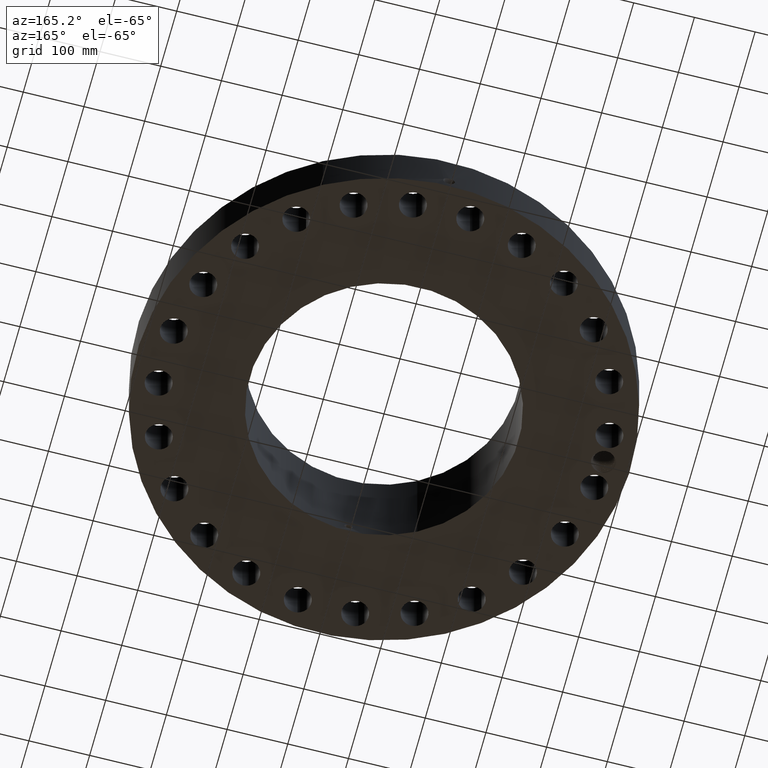
[diagram: clean part render]
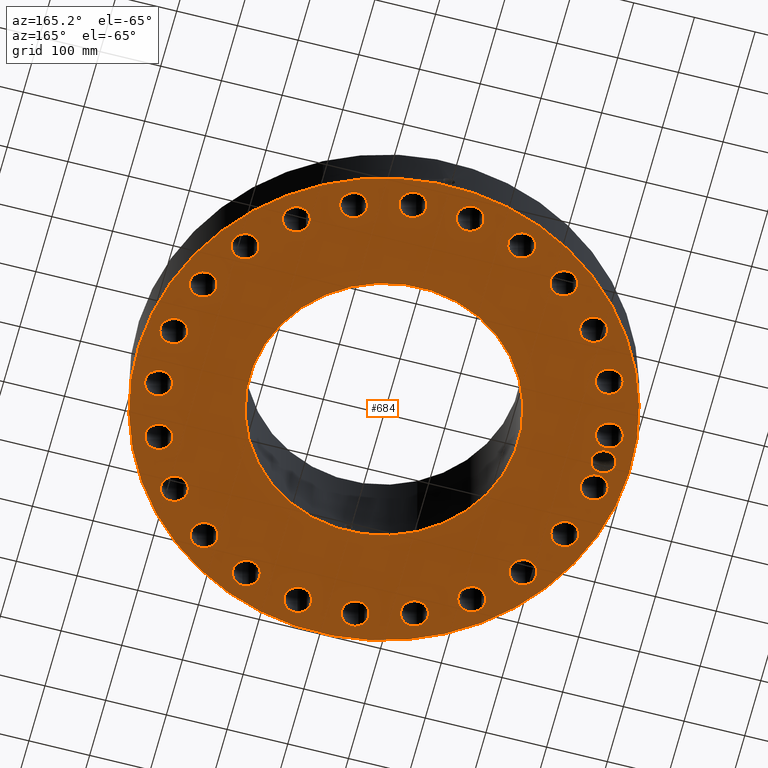
[diagram: same view with one face highlighted and labeled with its STEP entity id]
A machine part, auxiliary view. The second image highlights one B-rep face of the part: STEP entity #684.
In plain terms, the highlighted planar face has unit normal (0, 0, -1).
Its self-contained STEP definition (entity closure, byte-faithful):
#42=AXIS2_PLACEMENT_3D('Circle Axis2P3D',#40,#41,$) ;
#165=AXIS2_PLACEMENT_3D('Plane Axis2P3D',#162,#163,#164) ;
#169=AXIS2_PLACEMENT_3D('Circle Axis2P3D',#167,#168,$) ;
#178=AXIS2_PLACEMENT_3D('Circle Axis2P3D',#176,#177,$) ;
#187=AXIS2_PLACEMENT_3D('Circle Axis2P3D',#185,#186,$) ;
#236=AXIS2_PLACEMENT_3D('Circle Axis2P3D',#234,#235,$) ;
#245=AXIS2_PLACEMENT_3D('Circle Axis2P3D',#243,#244,$) ;
#254=AXIS2_PLACEMENT_3D('Circle Axis2P3D',#252,#253,$) ;
#263=AXIS2_PLACEMENT_3D('Circle Axis2P3D',#261,#262,$) ;
#272=AXIS2_PLACEMENT_3D('Circle Axis2P3D',#270,#271,$) ;
#281=AXIS2_PLACEMENT_3D('Circle Axis2P3D',#279,#280,$) ;
#290=AXIS2_PLACEMENT_3D('Circle Axis2P3D',#288,#289,$) ;
#299=AXIS2_PLACEMENT_3D('Circle Axis2P3D',#297,#298,$) ;
#308=AXIS2_PLACEMENT_3D('Circle Axis2P3D',#306,#307,$) ;
#317=AXIS2_PLACEMENT_3D('Circle Axis2P3D',#315,#316,$) ;
#326=AXIS2_PLACEMENT_3D('Circle Axis2P3D',#324,#325,$) ;
#335=AXIS2_PLACEMENT_3D('Circle Axis2P3D',#333,#334,$) ;
#344=AXIS2_PLACEMENT_3D('Circle Axis2P3D',#342,#343,$) ;
#353=AXIS2_PLACEMENT_3D('Circle Axis2P3D',#351,#352,$) ;
#362=AXIS2_PLACEMENT_3D('Circle Axis2P3D',#360,#361,$) ;
#371=AXIS2_PLACEMENT_3D('Circle Axis2P3D',#369,#370,$) ;
#380=AXIS2_PLACEMENT_3D('Circle Axis2P3D',#378,#379,$) ;
#389=AXIS2_PLACEMENT_3D('Circle Axis2P3D',#387,#388,$) ;
#398=AXIS2_PLACEMENT_3D('Circle Axis2P3D',#396,#397,$) ;
#407=AXIS2_PLACEMENT_3D('Circle Axis2P3D',#405,#406,$) ;
#416=AXIS2_PLACEMENT_3D('Circle Axis2P3D',#414,#415,$) ;
#425=AXIS2_PLACEMENT_3D('Circle Axis2P3D',#423,#424,$) ;
#434=AXIS2_PLACEMENT_3D('Circle Axis2P3D',#432,#433,$) ;
#443=AXIS2_PLACEMENT_3D('Circle Axis2P3D',#441,#442,$) ;
#452=AXIS2_PLACEMENT_3D('Circle Axis2P3D',#450,#451,$) ;
#461=AXIS2_PLACEMENT_3D('Circle Axis2P3D',#459,#460,$) ;
#470=AXIS2_PLACEMENT_3D('Circle Axis2P3D',#468,#469,$) ;
#479=AXIS2_PLACEMENT_3D('Circle Axis2P3D',#477,#478,$) ;
#488=AXIS2_PLACEMENT_3D('Circle Axis2P3D',#486,#487,$) ;
#497=AXIS2_PLACEMENT_3D('Circle Axis2P3D',#495,#496,$) ;
#506=AXIS2_PLACEMENT_3D('Circle Axis2P3D',#504,#505,$) ;
#515=AXIS2_PLACEMENT_3D('Circle Axis2P3D',#513,#514,$) ;
#524=AXIS2_PLACEMENT_3D('Circle Axis2P3D',#522,#523,$) ;
#533=AXIS2_PLACEMENT_3D('Circle Axis2P3D',#531,#532,$) ;
#542=AXIS2_PLACEMENT_3D('Circle Axis2P3D',#540,#541,$) ;
#551=AXIS2_PLACEMENT_3D('Circle Axis2P3D',#549,#550,$) ;
#560=AXIS2_PLACEMENT_3D('Circle Axis2P3D',#558,#559,$) ;
#569=AXIS2_PLACEMENT_3D('Circle Axis2P3D',#567,#568,$) ;
#578=AXIS2_PLACEMENT_3D('Circle Axis2P3D',#576,#577,$) ;
#587=AXIS2_PLACEMENT_3D('Circle Axis2P3D',#585,#586,$) ;
#596=AXIS2_PLACEMENT_3D('Circle Axis2P3D',#594,#595,$) ;
#605=AXIS2_PLACEMENT_3D('Circle Axis2P3D',#603,#604,$) ;
#614=AXIS2_PLACEMENT_3D('Circle Axis2P3D',#612,#613,$) ;
#623=AXIS2_PLACEMENT_3D('Circle Axis2P3D',#621,#622,$) ;
#632=AXIS2_PLACEMENT_3D('Circle Axis2P3D',#630,#631,$) ;
#641=AXIS2_PLACEMENT_3D('Circle Axis2P3D',#639,#640,$) ;
#650=AXIS2_PLACEMENT_3D('Circle Axis2P3D',#648,#649,$) ;
#659=AXIS2_PLACEMENT_3D('Circle Axis2P3D',#657,#658,$) ;
#668=AXIS2_PLACEMENT_3D('Circle Axis2P3D',#666,#667,$) ;
#677=AXIS2_PLACEMENT_3D('Circle Axis2P3D',#675,#676,$) ;
#40=CARTESIAN_POINT('Axis2P3D Location',(0.,0.,0.250000000001)) ;
#44=CARTESIAN_POINT('Vertex',(-7.6708086177,-14.0413209903,0.250000000001)) ;
#46=CARTESIAN_POINT('Vertex',(7.6708086177,14.0413209903,0.250000000001)) ;
#162=CARTESIAN_POINT('Axis2P3D Location',(0.,8.71900000003,0.250000000001)) ;
#167=CARTESIAN_POINT('Axis2P3D Location',(0.,0.,0.250000000001)) ;
#176=CARTESIAN_POINT('Axis2P3D Location',(-14.2500000001,-1.1189649382E-015,0.250000000001)) ;
#180=CARTESIAN_POINT('Vertex',(-14.920692473,0.36640096788,0.250000000001)) ;
#182=CARTESIAN_POINT('Vertex',(-14.109430485,0.75121120462,0.250000000001)) ;
#185=CARTESIAN_POINT('Axis2P3D Location',(-14.2500000001,-1.1189649382E-015,0.250000000001)) ;
#189=CARTESIAN_POINT('Vertex',(-14.109753553,-0.751271586437,0.250000000001)) ;
#193=CARTESIAN_POINT('Control Point',(-13.4375000001,1.00706844438E-014,0.250000000001)) ;
#194=CARTESIAN_POINT('Control Point',(-13.4405034549,-0.0700819441943,0.250000000001)) ;
#195=CARTESIAN_POINT('Control Point',(-13.4510704091,-0.13968877275,0.250000000001)) ;
#196=CARTESIAN_POINT('Control Point',(-13.4691263165,-0.207700003897,0.250000000001)) ;
#197=CARTESIAN_POINT('Control Point',(-13.519604773,-0.338419063919,0.250000000001)) ;
#198=CARTESIAN_POINT('Control Point',(-13.5966628654,-0.454573110216,0.250000000001)) ;
#199=CARTESIAN_POINT('Control Point',(-13.6413276705,-0.508069748149,0.250000000001)) ;
#200=CARTESIAN_POINT('Control Point',(-13.7414180791,-0.604187089628,0.250000000001)) ;
#201=CARTESIAN_POINT('Control Point',(-13.8594366449,-0.675897162851,0.250000000001)) ;
#202=CARTESIAN_POINT('Control Point',(-13.9220591025,-0.705005536257,0.250000000001)) ;
#203=CARTESIAN_POINT('Control Point',(-13.9980973711,-0.730534701364,0.250000000001)) ;
#204=CARTESIAN_POINT('Control Point',(-14.0761243016,-0.745926387661,0.250000000001)) ;
#205=CARTESIAN_POINT('Control Point',(-14.0873053839,-0.747917086949,0.250000000001)) ;
#206=CARTESIAN_POINT('Control Point',(-14.0985168536,-0.749699040823,0.250000000001)) ;
#207=CARTESIAN_POINT('Control Point',(-14.109753553,-0.751271586437,0.250000000001)) ;
#208=CARTESIAN_POINT('Vertex',(-13.4375000001,7.83275456743E-015,0.250000000001)) ;
#212=CARTESIAN_POINT('Control Point',(-13.4375000001,7.83275456743E-015,0.250000000001)) ;
#213=CARTESIAN_POINT('Control Point',(-13.4405027035,0.0700644117476,0.250000000001)) ;
#214=CARTESIAN_POINT('Control Point',(-13.4510651194,0.139653925414,0.250000000001)) ;
#215=CARTESIAN_POINT('Control Point',(-13.4691221804,0.207669613936,0.250000000001)) ;
#216=CARTESIAN_POINT('Control Point',(-13.5195963185,0.338375224405,0.250000000001)) ;
#217=CARTESIAN_POINT('Control Point',(-13.5966935604,0.454596467697,0.250000000001)) ;
#218=CARTESIAN_POINT('Control Point',(-13.6413727782,0.508119482105,0.250000000001)) ;
#219=CARTESIAN_POINT('Control Point',(-13.724805891,0.588234238338,0.250000000001)) ;
#220=CARTESIAN_POINT('Control Point',(-13.8207316301,0.651398124702,0.250000000001)) ;
#221=CARTESIAN_POINT('Control Point',(-13.8608246277,0.673749716828,0.250000000001)) ;
#222=CARTESIAN_POINT('Control Point',(-13.9334161483,0.707459382397,0.250000000001)) ;
#223=CARTESIAN_POINT('Control Point',(-14.0094370985,0.731460622269,0.250000000001)) ;
#224=CARTESIAN_POINT('Control Point',(-14.0424615587,0.739905634554,0.250000000001)) ;
#225=CARTESIAN_POINT('Control Point',(-14.0758392084,0.746494332784,0.250000000001)) ;
#226=CARTESIAN_POINT('Control Point',(-14.109430485,0.75121120462,0.250000000001)) ;
#234=CARTESIAN_POINT('Axis2P3D Location',(14.1280892746,-1.85999823914,0.250000000001)) ;
#238=CARTESIAN_POINT('Vertex',(14.8959740163,-2.27949558542,0.250000000001)) ;
#240=CARTESIAN_POINT('Vertex',(13.360204533,-1.44050089286,0.250000000001)) ;
#243=CARTESIAN_POINT('Axis2P3D Location',(14.1280892746,-1.85999823914,0.250000000001)) ;
#252=CARTESIAN_POINT('Axis2P3D Location',(0.,0.,0.250000000001)) ;
#256=CARTESIAN_POINT('Vertex',(4.18011127111,7.65164235715,0.250000000001)) ;
#258=CARTESIAN_POINT('Vertex',(-4.18011127111,-7.65164235715,0.250000000001)) ;
#261=CARTESIAN_POINT('Axis2P3D Location',(0.,0.,0.250000000001)) ;
#270=CARTESIAN_POINT('Axis2P3D Location',(13.1652833383,-5.45323891122,0.250000000001)) ;
#274=CARTESIAN_POINT('Vertex',(12.5321375373,-4.84929239481,0.250000000001)) ;
#276=CARTESIAN_POINT('Vertex',(13.7984291393,-6.05718542764,0.250000000001)) ;
#279=CARTESIAN_POINT('Axis2P3D Location',(13.1652833383,-5.45323891122,0.250000000001)) ;
#288=CARTESIAN_POINT('Axis2P3D Location',(11.3052850992,-8.67485036341,0.250000000001)) ;
#292=CARTESIAN_POINT('Vertex',(10.8500260789,-7.92761263388,0.250000000001)) ;
#294=CARTESIAN_POINT('Vertex',(11.7605441195,-9.42208809294,0.250000000001)) ;
#297=CARTESIAN_POINT('Axis2P3D Location',(11.3052850992,-8.67485036341,0.250000000001)) ;
#306=CARTESIAN_POINT('Axis2P3D Location',(8.67485036341,-11.3052850992,0.250000000001)) ;
#310=CARTESIAN_POINT('Vertex',(8.42850327366,-10.465679173,0.250000000001)) ;
#312=CARTESIAN_POINT('Vertex',(8.92119745316,-12.1448910254,0.250000000001)) ;
#315=CARTESIAN_POINT('Axis2P3D Location',(8.67485036341,-11.3052850992,0.250000000001)) ;
#324=CARTESIAN_POINT('Axis2P3D Location',(5.45323891122,-13.1652833383,0.250000000001)) ;
#328=CARTESIAN_POINT('Vertex',(5.43259189909,-12.2905269717,0.250000000001)) ;
#330=CARTESIAN_POINT('Vertex',(5.47388592335,-14.0400397049,0.250000000001)) ;
#333=CARTESIAN_POINT('Axis2P3D Location',(5.45323891122,-13.1652833383,0.250000000001)) ;
#342=CARTESIAN_POINT('Axis2P3D Location',(1.85999823914,-14.1280892746,0.250000000001)) ;
#346=CARTESIAN_POINT('Vertex',(2.06645836439,-13.2777956685,0.250000000001)) ;
#348=CARTESIAN_POINT('Vertex',(1.6535381139,-14.9783828808,0.250000000001)) ;
#351=CARTESIAN_POINT('Axis2P3D Location',(1.85999823914,-14.1280892746,0.250000000001)) ;
#360=CARTESIAN_POINT('Axis2P3D Location',(-1.85999823914,-14.1280892746,0.250000000001)) ;
#364=CARTESIAN_POINT('Vertex',(-1.44050089286,-13.360204533,0.250000000001)) ;
#366=CARTESIAN_POINT('Vertex',(-2.27949558542,-14.8959740163,0.250000000001)) ;
#369=CARTESIAN_POINT('Axis2P3D Location',(-1.85999823914,-14.1280892746,0.250000000001)) ;
#378=CARTESIAN_POINT('Axis2P3D Location',(-5.45323891122,-13.1652833383,0.250000000001)) ;
#382=CARTESIAN_POINT('Vertex',(-4.84929239481,-12.5321375373,0.250000000001)) ;
#384=CARTESIAN_POINT('Vertex',(-6.05718542764,-13.7984291393,0.250000000001)) ;
#387=CARTESIAN_POINT('Axis2P3D Location',(-5.45323891122,-13.1652833383,0.250000000001)) ;
#396=CARTESIAN_POINT('Axis2P3D Location',(-8.67485036341,-11.3052850992,0.250000000001)) ;
#400=CARTESIAN_POINT('Vertex',(-7.92761263388,-10.8500260789,0.250000000001)) ;
#402=CARTESIAN_POINT('Vertex',(-9.42208809294,-11.7605441195,0.250000000001)) ;
#405=CARTESIAN_POINT('Axis2P3D Location',(-8.67485036341,-11.3052850992,0.250000000001)) ;
#414=CARTESIAN_POINT('Axis2P3D Location',(-11.3052850992,-8.67485036341,0.250000000001)) ;
#418=CARTESIAN_POINT('Vertex',(-10.465679173,-8.42850327366,0.250000000001)) ;
#420=CARTESIAN_POINT('Vertex',(-12.1448910254,-8.92119745316,0.250000000001)) ;
#423=CARTESIAN_POINT('Axis2P3D Location',(-11.3052850992,-8.67485036341,0.250000000001)) ;
#432=CARTESIAN_POINT('Axis2P3D Location',(-13.1652833383,-5.45323891122,0.250000000001)) ;
#436=CARTESIAN_POINT('Vertex',(-12.2905269717,-5.43259189909,0.250000000001)) ;
#438=CARTESIAN_POINT('Vertex',(-14.0400397049,-5.47388592335,0.250000000001)) ;
#441=CARTESIAN_POINT('Axis2P3D Location',(-13.1652833383,-5.45323891122,0.250000000001)) ;
#450=CARTESIAN_POINT('Axis2P3D Location',(-14.1280892746,-1.85999823914,0.250000000001)) ;
#454=CARTESIAN_POINT('Vertex',(-13.2777956685,-2.06645836439,0.250000000001)) ;
#456=CARTESIAN_POINT('Vertex',(-14.9783828808,-1.6535381139,0.250000000001)) ;
#459=CARTESIAN_POINT('Axis2P3D Location',(-14.1280892746,-1.85999823914,0.250000000001)) ;
#468=CARTESIAN_POINT('Axis2P3D Location',(-14.1280892746,1.85999823914,0.250000000001)) ;
#472=CARTESIAN_POINT('Vertex',(-13.360204533,1.44050089286,0.250000000001)) ;
#474=CARTESIAN_POINT('Vertex',(-14.8959740163,2.27949558542,0.250000000001)) ;
#477=CARTESIAN_POINT('Axis2P3D Location',(-14.1280892746,1.85999823914,0.250000000001)) ;
#486=CARTESIAN_POINT('Axis2P3D Location',(-13.1652833383,5.45323891122,0.250000000001)) ;
#490=CARTESIAN_POINT('Vertex',(-12.5321375373,4.84929239481,0.250000000001)) ;
#492=CARTESIAN_POINT('Vertex',(-13.7984291393,6.05718542764,0.250000000001)) ;
#495=CARTESIAN_POINT('Axis2P3D Location',(-13.1652833383,5.45323891122,0.250000000001)) ;
#504=CARTESIAN_POINT('Axis2P3D Location',(-11.3052850992,8.67485036341,0.250000000001)) ;
#508=CARTESIAN_POINT('Vertex',(-10.8500260789,7.92761263388,0.250000000001)) ;
#510=CARTESIAN_POINT('Vertex',(-11.7605441195,9.42208809294,0.250000000001)) ;
#513=CARTESIAN_POINT('Axis2P3D Location',(-11.3052850992,8.67485036341,0.250000000001)) ;
#522=CARTESIAN_POINT('Axis2P3D Location',(-8.67485036341,11.3052850992,0.250000000001)) ;
#526=CARTESIAN_POINT('Vertex',(-8.42850327366,10.465679173,0.250000000001)) ;
#528=CARTESIAN_POINT('Vertex',(-8.92119745316,12.1448910254,0.250000000001)) ;
#531=CARTESIAN_POINT('Axis2P3D Location',(-8.67485036341,11.3052850992,0.250000000001)) ;
#540=CARTESIAN_POINT('Axis2P3D Location',(-5.45323891122,13.1652833383,0.250000000001)) ;
#544=CARTESIAN_POINT('Vertex',(-5.43259189909,12.2905269717,0.250000000001)) ;
#546=CARTESIAN_POINT('Vertex',(-5.47388592335,14.0400397049,0.250000000001)) ;
#549=CARTESIAN_POINT('Axis2P3D Location',(-5.45323891122,13.1652833383,0.250000000001)) ;
#558=CARTESIAN_POINT('Axis2P3D Location',(-1.85999823914,14.1280892746,0.250000000001)) ;
#562=CARTESIAN_POINT('Vertex',(-2.06645836439,13.2777956685,0.250000000001)) ;
#564=CARTESIAN_POINT('Vertex',(-1.6535381139,14.9783828808,0.250000000001)) ;
#567=CARTESIAN_POINT('Axis2P3D Location',(-1.85999823914,14.1280892746,0.250000000001)) ;
#576=CARTESIAN_POINT('Axis2P3D Location',(1.85999823914,14.1280892746,0.250000000001)) ;
#580=CARTESIAN_POINT('Vertex',(1.44050089286,13.360204533,0.250000000001)) ;
#582=CARTESIAN_POINT('Vertex',(2.27949558542,14.8959740163,0.250000000001)) ;
#585=CARTESIAN_POINT('Axis2P3D Location',(1.85999823914,14.1280892746,0.250000000001)) ;
#594=CARTESIAN_POINT('Axis2P3D Location',(5.45323891122,13.1652833383,0.250000000001)) ;
#598=CARTESIAN_POINT('Vertex',(4.84929239481,12.5321375373,0.250000000001)) ;
#600=CARTESIAN_POINT('Vertex',(6.05718542764,13.7984291393,0.250000000001)) ;
#603=CARTESIAN_POINT('Axis2P3D Location',(5.45323891122,13.1652833383,0.250000000001)) ;
#612=CARTESIAN_POINT('Axis2P3D Location',(8.67485036341,11.3052850992,0.250000000001)) ;
#616=CARTESIAN_POINT('Vertex',(7.92761263388,10.8500260789,0.250000000001)) ;
#618=CARTESIAN_POINT('Vertex',(9.42208809294,11.7605441195,0.250000000001)) ;
#621=CARTESIAN_POINT('Axis2P3D Location',(8.67485036341,11.3052850992,0.250000000001)) ;
#630=CARTESIAN_POINT('Axis2P3D Location',(11.3052850992,8.67485036341,0.250000000001)) ;
#634=CARTESIAN_POINT('Vertex',(10.465679173,8.42850327366,0.250000000001)) ;
#636=CARTESIAN_POINT('Vertex',(12.1448910254,8.92119745316,0.250000000001)) ;
#639=CARTESIAN_POINT('Axis2P3D Location',(11.3052850992,8.67485036341,0.250000000001)) ;
#648=CARTESIAN_POINT('Axis2P3D Location',(13.1652833383,5.45323891122,0.250000000001)) ;
#652=CARTESIAN_POINT('Vertex',(12.2905269717,5.43259189909,0.250000000001)) ;
#654=CARTESIAN_POINT('Vertex',(14.0400397049,5.47388592335,0.250000000001)) ;
#657=CARTESIAN_POINT('Axis2P3D Location',(13.1652833383,5.45323891122,0.250000000001)) ;
#666=CARTESIAN_POINT('Axis2P3D Location',(14.1280892746,1.85999823914,0.250000000001)) ;
#670=CARTESIAN_POINT('Vertex',(13.2777956685,2.06645836439,0.250000000001)) ;
#672=CARTESIAN_POINT('Vertex',(14.9783828808,1.6535381139,0.250000000001)) ;
#675=CARTESIAN_POINT('Axis2P3D Location',(14.1280892746,1.85999823914,0.250000000001)) ;
#41=DIRECTION('Axis2P3D Direction',(0.,0.,-0.0393700787402)) ;
#163=DIRECTION('Axis2P3D Direction',(0.,0.,-0.0393700787402)) ;
#164=DIRECTION('Axis2P3D XDirection',(0.0393700787402,0.,0.)) ;
#168=DIRECTION('Axis2P3D Direction',(0.,0.,-0.0393700787402)) ;
#177=DIRECTION('Axis2P3D Direction',(0.,0.,-0.0393700787402)) ;
#186=DIRECTION('Axis2P3D Direction',(0.,0.,-0.0393700787402)) ;
#235=DIRECTION('Axis2P3D Direction',(0.,0.,-0.0393700787402)) ;
#244=DIRECTION('Axis2P3D Direction',(0.,0.,-0.0393700787402)) ;
#253=DIRECTION('Axis2P3D Direction',(0.,0.,-0.0393700787402)) ;
#262=DIRECTION('Axis2P3D Direction',(0.,0.,-0.0393700787402)) ;
#271=DIRECTION('Axis2P3D Direction',(0.,0.,-0.0393700787402)) ;
#280=DIRECTION('Axis2P3D Direction',(0.,0.,-0.0393700787402)) ;
#289=DIRECTION('Axis2P3D Direction',(0.,0.,-0.0393700787402)) ;
#298=DIRECTION('Axis2P3D Direction',(0.,0.,-0.0393700787402)) ;
#307=DIRECTION('Axis2P3D Direction',(0.,0.,-0.0393700787402)) ;
#316=DIRECTION('Axis2P3D Direction',(0.,0.,-0.0393700787402)) ;
#325=DIRECTION('Axis2P3D Direction',(0.,0.,-0.0393700787402)) ;
#334=DIRECTION('Axis2P3D Direction',(0.,0.,-0.0393700787402)) ;
#343=DIRECTION('Axis2P3D Direction',(0.,0.,-0.0393700787402)) ;
#352=DIRECTION('Axis2P3D Direction',(0.,0.,-0.0393700787402)) ;
#361=DIRECTION('Axis2P3D Direction',(0.,0.,-0.0393700787402)) ;
#370=DIRECTION('Axis2P3D Direction',(0.,0.,-0.0393700787402)) ;
#379=DIRECTION('Axis2P3D Direction',(0.,0.,-0.0393700787402)) ;
#388=DIRECTION('Axis2P3D Direction',(0.,0.,-0.0393700787402)) ;
#397=DIRECTION('Axis2P3D Direction',(0.,0.,-0.0393700787402)) ;
#406=DIRECTION('Axis2P3D Direction',(0.,0.,-0.0393700787402)) ;
#415=DIRECTION('Axis2P3D Direction',(0.,0.,-0.0393700787402)) ;
#424=DIRECTION('Axis2P3D Direction',(0.,0.,-0.0393700787402)) ;
#433=DIRECTION('Axis2P3D Direction',(0.,0.,-0.0393700787402)) ;
#442=DIRECTION('Axis2P3D Direction',(0.,0.,-0.0393700787402)) ;
#451=DIRECTION('Axis2P3D Direction',(0.,0.,-0.0393700787402)) ;
#460=DIRECTION('Axis2P3D Direction',(0.,0.,-0.0393700787402)) ;
#469=DIRECTION('Axis2P3D Direction',(0.,0.,-0.0393700787402)) ;
#478=DIRECTION('Axis2P3D Direction',(0.,0.,-0.0393700787402)) ;
#487=DIRECTION('Axis2P3D Direction',(0.,0.,-0.0393700787402)) ;
#496=DIRECTION('Axis2P3D Direction',(0.,0.,-0.0393700787402)) ;
#505=DIRECTION('Axis2P3D Direction',(0.,0.,-0.0393700787402)) ;
#514=DIRECTION('Axis2P3D Direction',(0.,0.,-0.0393700787402)) ;
#523=DIRECTION('Axis2P3D Direction',(0.,0.,-0.0393700787402)) ;
#532=DIRECTION('Axis2P3D Direction',(0.,0.,-0.0393700787402)) ;
#541=DIRECTION('Axis2P3D Direction',(0.,0.,-0.0393700787402)) ;
#550=DIRECTION('Axis2P3D Direction',(0.,0.,-0.0393700787402)) ;
#559=DIRECTION('Axis2P3D Direction',(0.,0.,-0.0393700787402)) ;
#568=DIRECTION('Axis2P3D Direction',(0.,0.,-0.0393700787402)) ;
#577=DIRECTION('Axis2P3D Direction',(0.,0.,-0.0393700787402)) ;
#586=DIRECTION('Axis2P3D Direction',(0.,0.,-0.0393700787402)) ;
#595=DIRECTION('Axis2P3D Direction',(0.,0.,-0.0393700787402)) ;
#604=DIRECTION('Axis2P3D Direction',(0.,0.,-0.0393700787402)) ;
#613=DIRECTION('Axis2P3D Direction',(0.,0.,-0.0393700787402)) ;
#622=DIRECTION('Axis2P3D Direction',(0.,0.,-0.0393700787402)) ;
#631=DIRECTION('Axis2P3D Direction',(0.,0.,-0.0393700787402)) ;
#640=DIRECTION('Axis2P3D Direction',(0.,0.,-0.0393700787402)) ;
#649=DIRECTION('Axis2P3D Direction',(0.,0.,-0.0393700787402)) ;
#658=DIRECTION('Axis2P3D Direction',(0.,0.,-0.0393700787402)) ;
#667=DIRECTION('Axis2P3D Direction',(0.,0.,-0.0393700787402)) ;
#676=DIRECTION('Axis2P3D Direction',(0.,0.,-0.0393700787402)) ;
#173=ORIENTED_EDGE('',*,*,#48,.T.) ;
#174=ORIENTED_EDGE('',*,*,#171,.T.) ;
#229=ORIENTED_EDGE('',*,*,#184,.F.) ;
#230=ORIENTED_EDGE('',*,*,#191,.F.) ;
#231=ORIENTED_EDGE('',*,*,#210,.F.) ;
#232=ORIENTED_EDGE('',*,*,#227,.T.) ;
#249=ORIENTED_EDGE('',*,*,#242,.F.) ;
#250=ORIENTED_EDGE('',*,*,#247,.F.) ;
#267=ORIENTED_EDGE('',*,*,#260,.F.) ;
#268=ORIENTED_EDGE('',*,*,#265,.F.) ;
#285=ORIENTED_EDGE('',*,*,#278,.F.) ;
#286=ORIENTED_EDGE('',*,*,#283,.F.) ;
#303=ORIENTED_EDGE('',*,*,#296,.F.) ;
#304=ORIENTED_EDGE('',*,*,#301,.F.) ;
#321=ORIENTED_EDGE('',*,*,#314,.F.) ;
#322=ORIENTED_EDGE('',*,*,#319,.F.) ;
#339=ORIENTED_EDGE('',*,*,#332,.F.) ;
#340=ORIENTED_EDGE('',*,*,#337,.F.) ;
#357=ORIENTED_EDGE('',*,*,#350,.F.) ;
#358=ORIENTED_EDGE('',*,*,#355,.F.) ;
#375=ORIENTED_EDGE('',*,*,#368,.F.) ;
#376=ORIENTED_EDGE('',*,*,#373,.F.) ;
#393=ORIENTED_EDGE('',*,*,#386,.F.) ;
#394=ORIENTED_EDGE('',*,*,#391,.F.) ;
#411=ORIENTED_EDGE('',*,*,#404,.F.) ;
#412=ORIENTED_EDGE('',*,*,#409,.F.) ;
#429=ORIENTED_EDGE('',*,*,#422,.F.) ;
#430=ORIENTED_EDGE('',*,*,#427,.F.) ;
#447=ORIENTED_EDGE('',*,*,#440,.F.) ;
#448=ORIENTED_EDGE('',*,*,#445,.F.) ;
#465=ORIENTED_EDGE('',*,*,#458,.F.) ;
#466=ORIENTED_EDGE('',*,*,#463,.F.) ;
#483=ORIENTED_EDGE('',*,*,#476,.F.) ;
#484=ORIENTED_EDGE('',*,*,#481,.F.) ;
#501=ORIENTED_EDGE('',*,*,#494,.F.) ;
#502=ORIENTED_EDGE('',*,*,#499,.F.) ;
#519=ORIENTED_EDGE('',*,*,#512,.F.) ;
#520=ORIENTED_EDGE('',*,*,#517,.F.) ;
#537=ORIENTED_EDGE('',*,*,#530,.F.) ;
#538=ORIENTED_EDGE('',*,*,#535,.F.) ;
#555=ORIENTED_EDGE('',*,*,#548,.F.) ;
#556=ORIENTED_EDGE('',*,*,#553,.F.) ;
#573=ORIENTED_EDGE('',*,*,#566,.F.) ;
#574=ORIENTED_EDGE('',*,*,#571,.F.) ;
#591=ORIENTED_EDGE('',*,*,#584,.F.) ;
#592=ORIENTED_EDGE('',*,*,#589,.F.) ;
#609=ORIENTED_EDGE('',*,*,#602,.F.) ;
#610=ORIENTED_EDGE('',*,*,#607,.F.) ;
#627=ORIENTED_EDGE('',*,*,#620,.F.) ;
#628=ORIENTED_EDGE('',*,*,#625,.F.) ;
#645=ORIENTED_EDGE('',*,*,#638,.F.) ;
#646=ORIENTED_EDGE('',*,*,#643,.F.) ;
#663=ORIENTED_EDGE('',*,*,#656,.F.) ;
#664=ORIENTED_EDGE('',*,*,#661,.F.) ;
#681=ORIENTED_EDGE('',*,*,#674,.F.) ;
#682=ORIENTED_EDGE('',*,*,#679,.F.) ;
#233=FACE_BOUND('',#228,.T.) ;
#251=FACE_BOUND('',#248,.T.) ;
#269=FACE_BOUND('',#266,.T.) ;
#287=FACE_BOUND('',#284,.T.) ;
#305=FACE_BOUND('',#302,.T.) ;
#323=FACE_BOUND('',#320,.T.) ;
#341=FACE_BOUND('',#338,.T.) ;
#359=FACE_BOUND('',#356,.T.) ;
#377=FACE_BOUND('',#374,.T.) ;
#395=FACE_BOUND('',#392,.T.) ;
#413=FACE_BOUND('',#410,.T.) ;
#431=FACE_BOUND('',#428,.T.) ;
#449=FACE_BOUND('',#446,.T.) ;
#467=FACE_BOUND('',#464,.T.) ;
#485=FACE_BOUND('',#482,.T.) ;
#503=FACE_BOUND('',#500,.T.) ;
#521=FACE_BOUND('',#518,.T.) ;
#539=FACE_BOUND('',#536,.T.) ;
#557=FACE_BOUND('',#554,.T.) ;
#575=FACE_BOUND('',#572,.T.) ;
#593=FACE_BOUND('',#590,.T.) ;
#611=FACE_BOUND('',#608,.T.) ;
#629=FACE_BOUND('',#626,.T.) ;
#647=FACE_BOUND('',#644,.T.) ;
#665=FACE_BOUND('',#662,.T.) ;
#683=FACE_BOUND('',#680,.T.) ;
#684=ADVANCED_FACE('PartBody',(#175,#233,#251,#269,#287,#305,#323,#341,#359,#377,#395,#413,#431,#449,#467,#485,#503,#521,#539,#557,#575,#593,#611,#629,#647,#665,#683),#166,.T.) ;
#192=B_SPLINE_CURVE_WITH_KNOTS('',5,(#193,#194,#195,#196,#197,#198,#199,#200,#201,#202,#203,#204,#205,#206,#207),.UNSPECIFIED.,.F.,.U.,(6,3,3,3,6),(0.,12.198080047,24.4063112017,36.6208948993,38.6564181126),.UNSPECIFIED.) ;
#211=B_SPLINE_CURVE_WITH_KNOTS('',5,(#212,#213,#214,#215,#216,#217,#218,#219,#220,#221,#222,#223,#224,#225,#226),.UNSPECIFIED.,.F.,.U.,(6,3,3,3,6),(0.,12.1950284448,24.388352287,32.5133495611,38.5899279936),.UNSPECIFIED.) ;
#43=CIRCLE('generated circle',#42,16.0000000001) ;
#170=CIRCLE('generated circle',#169,16.0000000001) ;
#179=CIRCLE('generated circle',#178,0.764250000003) ;
#188=CIRCLE('generated circle',#187,0.764250000003) ;
#237=CIRCLE('generated circle',#236,0.875000000004) ;
#246=CIRCLE('generated circle',#245,0.875000000004) ;
#255=CIRCLE('generated circle',#254,8.71900000003) ;
#264=CIRCLE('generated circle',#263,8.71900000003) ;
#273=CIRCLE('generated circle',#272,0.875000000004) ;
#282=CIRCLE('generated circle',#281,0.875000000004) ;
#291=CIRCLE('generated circle',#290,0.875000000003) ;
#300=CIRCLE('generated circle',#299,0.875000000003) ;
#309=CIRCLE('generated circle',#308,0.875000000004) ;
#318=CIRCLE('generated circle',#317,0.875000000004) ;
#327=CIRCLE('generated circle',#326,0.875000000003) ;
#336=CIRCLE('generated circle',#335,0.875000000003) ;
#345=CIRCLE('generated circle',#344,0.875000000004) ;
#354=CIRCLE('generated circle',#353,0.875000000004) ;
#363=CIRCLE('generated circle',#362,0.875000000004) ;
#372=CIRCLE('generated circle',#371,0.875000000004) ;
#381=CIRCLE('generated circle',#380,0.875000000004) ;
#390=CIRCLE('generated circle',#389,0.875000000004) ;
#399=CIRCLE('generated circle',#398,0.875000000003) ;
#408=CIRCLE('generated circle',#407,0.875000000003) ;
#417=CIRCLE('generated circle',#416,0.875000000004) ;
#426=CIRCLE('generated circle',#425,0.875000000004) ;
#435=CIRCLE('generated circle',#434,0.875000000003) ;
#444=CIRCLE('generated circle',#443,0.875000000003) ;
#453=CIRCLE('generated circle',#452,0.875000000004) ;
#462=CIRCLE('generated circle',#461,0.875000000004) ;
#471=CIRCLE('generated circle',#470,0.875000000004) ;
#480=CIRCLE('generated circle',#479,0.875000000004) ;
#489=CIRCLE('generated circle',#488,0.875000000004) ;
#498=CIRCLE('generated circle',#497,0.875000000004) ;
#507=CIRCLE('generated circle',#506,0.875000000003) ;
#516=CIRCLE('generated circle',#515,0.875000000003) ;
#525=CIRCLE('generated circle',#524,0.875000000004) ;
#534=CIRCLE('generated circle',#533,0.875000000004) ;
#543=CIRCLE('generated circle',#542,0.875000000003) ;
#552=CIRCLE('generated circle',#551,0.875000000003) ;
#561=CIRCLE('generated circle',#560,0.875000000004) ;
#570=CIRCLE('generated circle',#569,0.875000000004) ;
#579=CIRCLE('generated circle',#578,0.875000000004) ;
#588=CIRCLE('generated circle',#587,0.875000000004) ;
#597=CIRCLE('generated circle',#596,0.875000000004) ;
#606=CIRCLE('generated circle',#605,0.875000000004) ;
#615=CIRCLE('generated circle',#614,0.875000000003) ;
#624=CIRCLE('generated circle',#623,0.875000000003) ;
#633=CIRCLE('generated circle',#632,0.875000000004) ;
#642=CIRCLE('generated circle',#641,0.875000000004) ;
#651=CIRCLE('generated circle',#650,0.875000000003) ;
#660=CIRCLE('generated circle',#659,0.875000000003) ;
#669=CIRCLE('generated circle',#668,0.875000000004) ;
#678=CIRCLE('generated circle',#677,0.875000000004) ;
#48=EDGE_CURVE('',#45,#47,#43,.T.) ;
#171=EDGE_CURVE('',#47,#45,#170,.T.) ;
#184=EDGE_CURVE('',#181,#183,#179,.T.) ;
#191=EDGE_CURVE('',#190,#181,#188,.T.) ;
#210=EDGE_CURVE('',#209,#190,#192,.T.) ;
#227=EDGE_CURVE('',#209,#183,#211,.T.) ;
#242=EDGE_CURVE('',#239,#241,#237,.T.) ;
#247=EDGE_CURVE('',#241,#239,#246,.T.) ;
#260=EDGE_CURVE('',#257,#259,#255,.T.) ;
#265=EDGE_CURVE('',#259,#257,#264,.T.) ;
#278=EDGE_CURVE('',#275,#277,#273,.T.) ;
#283=EDGE_CURVE('',#277,#275,#282,.T.) ;
#296=EDGE_CURVE('',#293,#295,#291,.T.) ;
#301=EDGE_CURVE('',#295,#293,#300,.T.) ;
#314=EDGE_CURVE('',#311,#313,#309,.T.) ;
#319=EDGE_CURVE('',#313,#311,#318,.T.) ;
#332=EDGE_CURVE('',#329,#331,#327,.T.) ;
#337=EDGE_CURVE('',#331,#329,#336,.T.) ;
#350=EDGE_CURVE('',#347,#349,#345,.T.) ;
#355=EDGE_CURVE('',#349,#347,#354,.T.) ;
#368=EDGE_CURVE('',#365,#367,#363,.T.) ;
#373=EDGE_CURVE('',#367,#365,#372,.T.) ;
#386=EDGE_CURVE('',#383,#385,#381,.T.) ;
#391=EDGE_CURVE('',#385,#383,#390,.T.) ;
#404=EDGE_CURVE('',#401,#403,#399,.T.) ;
#409=EDGE_CURVE('',#403,#401,#408,.T.) ;
#422=EDGE_CURVE('',#419,#421,#417,.T.) ;
#427=EDGE_CURVE('',#421,#419,#426,.T.) ;
#440=EDGE_CURVE('',#437,#439,#435,.T.) ;
#445=EDGE_CURVE('',#439,#437,#444,.T.) ;
#458=EDGE_CURVE('',#455,#457,#453,.T.) ;
#463=EDGE_CURVE('',#457,#455,#462,.T.) ;
#476=EDGE_CURVE('',#473,#475,#471,.T.) ;
#481=EDGE_CURVE('',#475,#473,#480,.T.) ;
#494=EDGE_CURVE('',#491,#493,#489,.T.) ;
#499=EDGE_CURVE('',#493,#491,#498,.T.) ;
#512=EDGE_CURVE('',#509,#511,#507,.T.) ;
#517=EDGE_CURVE('',#511,#509,#516,.T.) ;
#530=EDGE_CURVE('',#527,#529,#525,.T.) ;
#535=EDGE_CURVE('',#529,#527,#534,.T.) ;
#548=EDGE_CURVE('',#545,#547,#543,.T.) ;
#553=EDGE_CURVE('',#547,#545,#552,.T.) ;
#566=EDGE_CURVE('',#563,#565,#561,.T.) ;
#571=EDGE_CURVE('',#565,#563,#570,.T.) ;
#584=EDGE_CURVE('',#581,#583,#579,.T.) ;
#589=EDGE_CURVE('',#583,#581,#588,.T.) ;
#602=EDGE_CURVE('',#599,#601,#597,.T.) ;
#607=EDGE_CURVE('',#601,#599,#606,.T.) ;
#620=EDGE_CURVE('',#617,#619,#615,.T.) ;
#625=EDGE_CURVE('',#619,#617,#624,.T.) ;
#638=EDGE_CURVE('',#635,#637,#633,.T.) ;
#643=EDGE_CURVE('',#637,#635,#642,.T.) ;
#656=EDGE_CURVE('',#653,#655,#651,.T.) ;
#661=EDGE_CURVE('',#655,#653,#660,.T.) ;
#674=EDGE_CURVE('',#671,#673,#669,.T.) ;
#679=EDGE_CURVE('',#673,#671,#678,.T.) ;
#172=EDGE_LOOP('',(#173,#174)) ;
#228=EDGE_LOOP('',(#229,#230,#231,#232)) ;
#248=EDGE_LOOP('',(#249,#250)) ;
#266=EDGE_LOOP('',(#267,#268)) ;
#284=EDGE_LOOP('',(#285,#286)) ;
#302=EDGE_LOOP('',(#303,#304)) ;
#320=EDGE_LOOP('',(#321,#322)) ;
#338=EDGE_LOOP('',(#339,#340)) ;
#356=EDGE_LOOP('',(#357,#358)) ;
#374=EDGE_LOOP('',(#375,#376)) ;
#392=EDGE_LOOP('',(#393,#394)) ;
#410=EDGE_LOOP('',(#411,#412)) ;
#428=EDGE_LOOP('',(#429,#430)) ;
#446=EDGE_LOOP('',(#447,#448)) ;
#464=EDGE_LOOP('',(#465,#466)) ;
#482=EDGE_LOOP('',(#483,#484)) ;
#500=EDGE_LOOP('',(#501,#502)) ;
#518=EDGE_LOOP('',(#519,#520)) ;
#536=EDGE_LOOP('',(#537,#538)) ;
#554=EDGE_LOOP('',(#555,#556)) ;
#572=EDGE_LOOP('',(#573,#574)) ;
#590=EDGE_LOOP('',(#591,#592)) ;
#608=EDGE_LOOP('',(#609,#610)) ;
#626=EDGE_LOOP('',(#627,#628)) ;
#644=EDGE_LOOP('',(#645,#646)) ;
#662=EDGE_LOOP('',(#663,#664)) ;
#680=EDGE_LOOP('',(#681,#682)) ;
#175=FACE_OUTER_BOUND('',#172,.T.) ;
#166=PLANE('',#165) ;
#45=VERTEX_POINT('',#44) ;
#47=VERTEX_POINT('',#46) ;
#181=VERTEX_POINT('',#180) ;
#183=VERTEX_POINT('',#182) ;
#190=VERTEX_POINT('',#189) ;
#209=VERTEX_POINT('',#208) ;
#239=VERTEX_POINT('',#238) ;
#241=VERTEX_POINT('',#240) ;
#257=VERTEX_POINT('',#256) ;
#259=VERTEX_POINT('',#258) ;
#275=VERTEX_POINT('',#274) ;
#277=VERTEX_POINT('',#276) ;
#293=VERTEX_POINT('',#292) ;
#295=VERTEX_POINT('',#294) ;
#311=VERTEX_POINT('',#310) ;
#313=VERTEX_POINT('',#312) ;
#329=VERTEX_POINT('',#328) ;
#331=VERTEX_POINT('',#330) ;
#347=VERTEX_POINT('',#346) ;
#349=VERTEX_POINT('',#348) ;
#365=VERTEX_POINT('',#364) ;
#367=VERTEX_POINT('',#366) ;
#383=VERTEX_POINT('',#382) ;
#385=VERTEX_POINT('',#384) ;
#401=VERTEX_POINT('',#400) ;
#403=VERTEX_POINT('',#402) ;
#419=VERTEX_POINT('',#418) ;
#421=VERTEX_POINT('',#420) ;
#437=VERTEX_POINT('',#436) ;
#439=VERTEX_POINT('',#438) ;
#455=VERTEX_POINT('',#454) ;
#457=VERTEX_POINT('',#456) ;
#473=VERTEX_POINT('',#472) ;
#475=VERTEX_POINT('',#474) ;
#491=VERTEX_POINT('',#490) ;
#493=VERTEX_POINT('',#492) ;
#509=VERTEX_POINT('',#508) ;
#511=VERTEX_POINT('',#510) ;
#527=VERTEX_POINT('',#526) ;
#529=VERTEX_POINT('',#528) ;
#545=VERTEX_POINT('',#544) ;
#547=VERTEX_POINT('',#546) ;
#563=VERTEX_POINT('',#562) ;
#565=VERTEX_POINT('',#564) ;
#581=VERTEX_POINT('',#580) ;
#583=VERTEX_POINT('',#582) ;
#599=VERTEX_POINT('',#598) ;
#601=VERTEX_POINT('',#600) ;
#617=VERTEX_POINT('',#616) ;
#619=VERTEX_POINT('',#618) ;
#635=VERTEX_POINT('',#634) ;
#637=VERTEX_POINT('',#636) ;
#653=VERTEX_POINT('',#652) ;
#655=VERTEX_POINT('',#654) ;
#671=VERTEX_POINT('',#670) ;
#673=VERTEX_POINT('',#672) ;